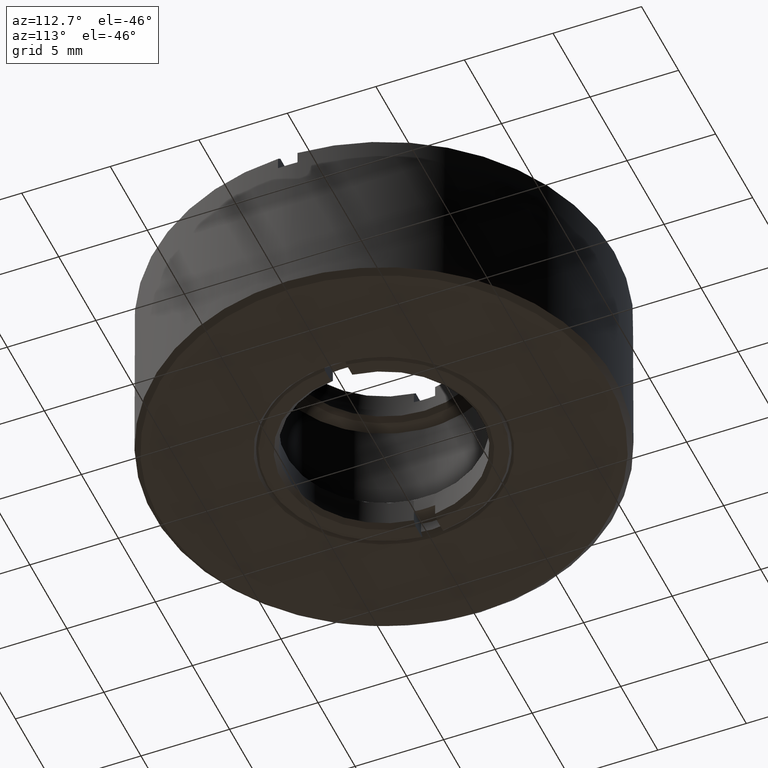
[diagram: clean part render]
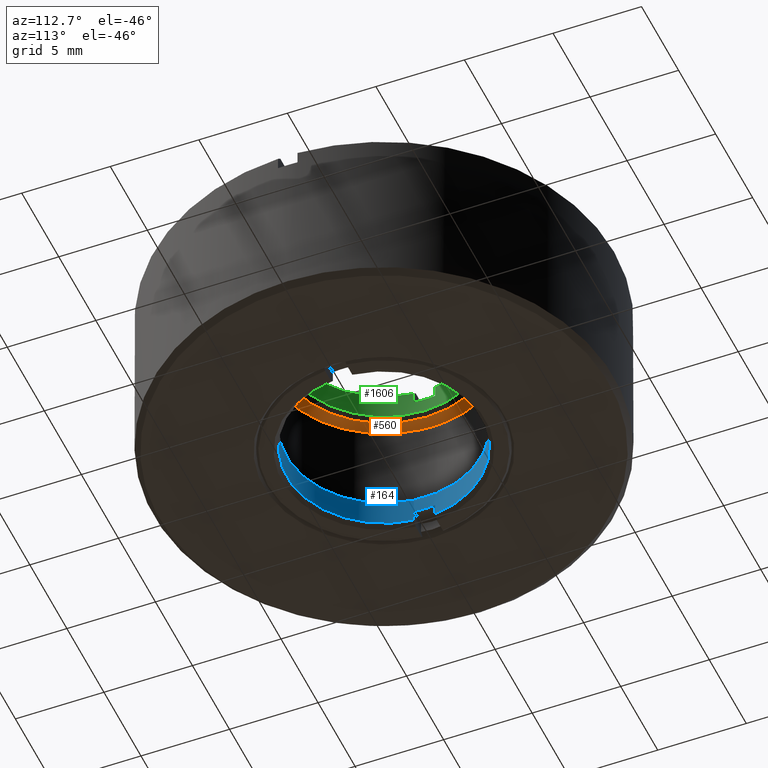
[diagram: same view with three faces highlighted in distinct colors, each labeled with its STEP entity id]
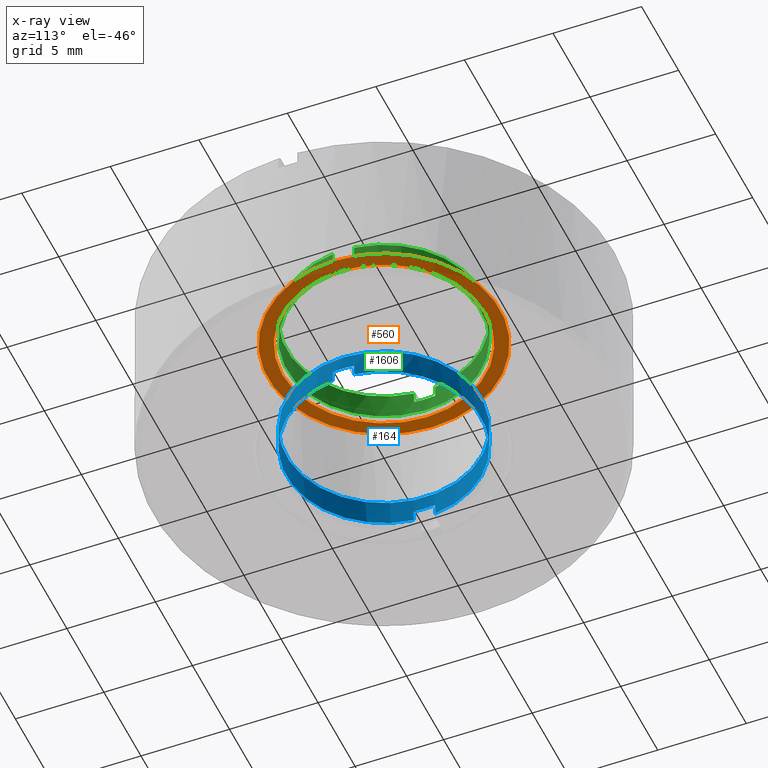
[diagram: x-ray of the same camera — body ghosted, the three highlighted faces saturated]
A machine part, auxiliary view with three faces highlighted in distinct colors.
The next image is the same camera in x-ray (body ghosted, the three faces saturated) — at least one of them is partly hidden behind the body in this view.
Their STEP definitions:

[orange] entity #560 — the highlighted planar face has unit normal (0, 0, 1).
#35 = DIRECTION ( 'NONE',  ( 1.000000000000000000, 0.000000000000000000, 0.000000000000000000 ) ) ;
#67 = CIRCLE ( 'NONE', #702, 5.749999999977717380 ) ;
#131 = CARTESIAN_POINT ( 'NONE',  ( 0.000000000000000000, 0.000000000000000000, 2.999999999990450306 ) ) ;
#204 = CARTESIAN_POINT ( 'NONE',  ( 6.545000000016898412, 0.000000000000000000, 3.000000000047293724 ) ) ;
#207 = ORIENTED_EDGE ( 'NONE', *, *, #1243, .F. ) ;
#315 = EDGE_CURVE ( 'NONE', #729, #729, #1078, .T. ) ;
#326 = FACE_BOUND ( 'NONE', #1264, .T. ) ;
#391 = DIRECTION ( 'NONE',  ( 0.000000000000000000, 0.000000000000000000, -1.000000000000000000 ) ) ;
#441 = ORIENTED_EDGE ( 'NONE', *, *, #315, .F. ) ;
#455 = DIRECTION ( 'NONE',  ( 0.000000000000000000, 0.000000000000000000, 1.000000000000000000 ) ) ;
#560 = ADVANCED_FACE ( 'NONE', ( #1417, #326 ), #1432, .F. ) ;
#630 = DIRECTION ( 'NONE',  ( -1.000000000000000000, 0.000000000000000000, 0.000000000000000000 ) ) ;
#668 = DIRECTION ( 'NONE',  ( 1.000000000000000000, 0.000000000000000000, -0.000000000000000000 ) ) ;
#702 = AXIS2_PLACEMENT_3D ( 'NONE', #131, #391, #630 ) ;
#729 = VERTEX_POINT ( 'NONE', #204 ) ;
#830 = EDGE_LOOP ( 'NONE', ( #441 ) ) ;
#838 = AXIS2_PLACEMENT_3D ( 'NONE', #1303, #455, #668 ) ;
#896 = DIRECTION ( 'NONE',  ( 0.000000000000000000, 0.000000000000000000, 1.000000000000000000 ) ) ;
#1078 = CIRCLE ( 'NONE', #1364, 6.545000000016898412 ) ;
#1243 = EDGE_CURVE ( 'NONE', #1557, #1557, #67, .T. ) ;
#1264 = EDGE_LOOP ( 'NONE', ( #207 ) ) ;
#1303 = CARTESIAN_POINT ( 'NONE',  ( 0.000000000000000000, 0.000000000000000000, 3.000000000000000000 ) ) ;
#1339 = CARTESIAN_POINT ( 'NONE',  ( 0.000000000000000000, 0.000000000000000000, 3.000000000047293724 ) ) ;
#1364 = AXIS2_PLACEMENT_3D ( 'NONE', #1339, #896, #35 ) ;
#1417 = FACE_OUTER_BOUND ( 'NONE', #830, .T. ) ;
#1432 = PLANE ( 'NONE',  #838 ) ;
#1557 = VERTEX_POINT ( 'NONE', #1580 ) ;
#1580 = CARTESIAN_POINT ( 'NONE',  ( -5.749999999977717380, 0.000000000000000000, 2.999999999990450306 ) ) ;

[blue] entity #164 — the highlighted cylindrical surface (bore or boss wall) has radius 5.5 mm, axis along (0, 0, -1).
#41 = CIRCLE ( 'NONE', #209, 5.499999999999998224 ) ;
#87 = CARTESIAN_POINT ( 'NONE',  ( -5.467174773134655830, 0.6000000000000000888, -3.000000000000000000 ) ) ;
#102 = EDGE_LOOP ( 'NONE', ( #394, #988, #301, #250, #1431, #848, #241, #432 ) ) ;
#122 = VERTEX_POINT ( 'NONE', #1162 ) ;
#157 = CIRCLE ( 'NONE', #774, 5.499999999999998224 ) ;
#164 = ADVANCED_FACE ( 'NONE', ( #435, #1387 ), #1394, .F. ) ;
#197 = DIRECTION ( 'NONE',  ( -0.000000000000000000, -0.000000000000000000, 1.000000000000000000 ) ) ;
#209 = AXIS2_PLACEMENT_3D ( 'NONE', #292, #1587, #889 ) ;
#212 = CARTESIAN_POINT ( 'NONE',  ( -5.467174773156500578, -0.5999999999999998668, -4.750000000043995030 ) ) ;
#232 = VERTEX_POINT ( 'NONE', #466 ) ;
#233 = VERTEX_POINT ( 'NONE', #212 ) ;
#240 = EDGE_CURVE ( 'NONE', #888, #233, #1136, .T. ) ;
#241 = ORIENTED_EDGE ( 'NONE', *, *, #240, .T. ) ;
#247 = ORIENTED_EDGE ( 'NONE', *, *, #1192, .T. ) ;
#248 = LINE ( 'NONE', #837, #1426 ) ;
#250 = ORIENTED_EDGE ( 'NONE', *, *, #572, .F. ) ;
#278 = CARTESIAN_POINT ( 'NONE',  ( 5.467174773129458210, 0.6000000000000000888, -4.750000000005970335 ) ) ;
#288 = DIRECTION ( 'NONE',  ( -1.000000000000000000, 7.105427357601001859E-15, 0.000000000000000000 ) ) ;
#292 = CARTESIAN_POINT ( 'NONE',  ( 0.000000000000000000, 0.000000000000000000, -4.099999999999999645 ) ) ;
#301 = ORIENTED_EDGE ( 'NONE', *, *, #1186, .F. ) ;
#316 = LINE ( 'NONE', #694, #532 ) ;
#349 = EDGE_CURVE ( 'NONE', #1577, #999, #41, .T. ) ;
#368 = EDGE_LOOP ( 'NONE', ( #247 ) ) ;
#376 = VERTEX_POINT ( 'NONE', #278 ) ;
#394 = ORIENTED_EDGE ( 'NONE', *, *, #349, .F. ) ;
#411 = AXIS2_PLACEMENT_3D ( 'NONE', #1268, #539, #1025 ) ;
#432 = ORIENTED_EDGE ( 'NONE', *, *, #1285, .T. ) ;
#435 = FACE_OUTER_BOUND ( 'NONE', #102, .T. ) ;
#460 = DIRECTION ( 'NONE',  ( -1.000000000000000000, 0.000000000000000000, 0.000000000000000000 ) ) ;
#466 = CARTESIAN_POINT ( 'NONE',  ( 5.467174773136141752, -0.5999999999999998668, -4.099999999999999645 ) ) ;
#473 = AXIS2_PLACEMENT_3D ( 'NONE', #845, #943, #1341 ) ;
#480 = VECTOR ( 'NONE', #1570, 1000.000000000000000 ) ;
#532 = VECTOR ( 'NONE', #803, 1000.000000000000000 ) ;
#539 = DIRECTION ( 'NONE',  ( 0.000000000000000000, 0.000000000000000000, -1.000000000000000000 ) ) ;
#572 = EDGE_CURVE ( 'NONE', #623, #376, #316, .T. ) ;
#594 = DIRECTION ( 'NONE',  ( 0.000000000000000000, -0.000000000000000000, -1.000000000000000000 ) ) ;
#621 = EDGE_CURVE ( 'NONE', #232, #888, #248, .T. ) ;
#623 = VERTEX_POINT ( 'NONE', #847 ) ;
#694 = CARTESIAN_POINT ( 'NONE',  ( 5.467174773134655830, 0.6000000000000000888, -3.000000000000000000 ) ) ;
#774 = AXIS2_PLACEMENT_3D ( 'NONE', #1193, #1447, #951 ) ;
#803 = DIRECTION ( 'NONE',  ( 0.000000000000000000, 0.000000000000000000, -1.000000000000000000 ) ) ;
#837 = CARTESIAN_POINT ( 'NONE',  ( 5.467174773137628563, -0.5999999999999998668, -4.100000000000000533 ) ) ;
#842 = CARTESIAN_POINT ( 'NONE',  ( -5.467174773134655830, 0.6000000000000000888, -4.099999999999999645 ) ) ;
#845 = CARTESIAN_POINT ( 'NONE',  ( 0.000000000000000000, 0.000000000000000000, -3.249999999927695171 ) ) ;
#847 = CARTESIAN_POINT ( 'NONE',  ( 5.467174773134655830, 0.6000000000000000888, -4.099999999999999645 ) ) ;
#848 = ORIENTED_EDGE ( 'NONE', *, *, #621, .T. ) ;
#888 = VERTEX_POINT ( 'NONE', #1611 ) ;
#889 = DIRECTION ( 'NONE',  ( -1.000000000000000000, 0.000000000000000000, 0.000000000000000000 ) ) ;
#943 = DIRECTION ( 'NONE',  ( 0.000000000000000000, -0.000000000000000000, 1.000000000000000000 ) ) ;
#951 = DIRECTION ( 'NONE',  ( -1.000000000000000000, -8.881784197001252323E-16, 0.000000000000000000 ) ) ;
#988 = ORIENTED_EDGE ( 'NONE', *, *, #1535, .F. ) ;
#994 = DIRECTION ( 'NONE',  ( -0.000000000000000000, 0.000000000000000000, 1.000000000000000000 ) ) ;
#999 = VERTEX_POINT ( 'NONE', #1300 ) ;
#1025 = DIRECTION ( 'NONE',  ( -1.000000000000000000, 0.000000000000000000, 0.000000000000000000 ) ) ;
#1055 = CIRCLE ( 'NONE', #473, 5.500000000040472514 ) ;
#1062 = VERTEX_POINT ( 'NONE', #1086 ) ;
#1077 = LINE ( 'NONE', #87, #480 ) ;
#1085 = CARTESIAN_POINT ( 'NONE',  ( 0.000000000000000000, 0.000000000000000000, -4.750000000062755134 ) ) ;
#1086 = CARTESIAN_POINT ( 'NONE',  ( 5.500000000040472514, 0.000000000000000000, -3.249999999927695171 ) ) ;
#1107 = CARTESIAN_POINT ( 'NONE',  ( -5.467174773137628563, -0.5999999999999998668, -4.100000000000000533 ) ) ;
#1136 = CIRCLE ( 'NONE', #1597, 5.500000000040472514 ) ;
#1144 = AXIS2_PLACEMENT_3D ( 'NONE', #1298, #197, #288 ) ;
#1162 = CARTESIAN_POINT ( 'NONE',  ( -5.467174773129178433, 0.6000000000000000888, -4.750000000005691447 ) ) ;
#1186 = EDGE_CURVE ( 'NONE', #376, #122, #157, .T. ) ;
#1192 = EDGE_CURVE ( 'NONE', #1062, #1062, #1055, .T. ) ;
#1193 = CARTESIAN_POINT ( 'NONE',  ( 0.000000000000000000, 0.000000000000000000, -4.749999999999992895 ) ) ;
#1197 = DIRECTION ( 'NONE',  ( 0.000000000000000000, 0.000000000000000000, -1.000000000000000000 ) ) ;
#1268 = CARTESIAN_POINT ( 'NONE',  ( 0.000000000000000000, 0.000000000000000000, -3.000000000000000000 ) ) ;
#1285 = EDGE_CURVE ( 'NONE', #233, #999, #1347, .T. ) ;
#1298 = CARTESIAN_POINT ( 'NONE',  ( 0.000000000000000000, 0.000000000000000000, -4.099999999999999645 ) ) ;
#1300 = CARTESIAN_POINT ( 'NONE',  ( -5.467174773136141752, -0.5999999999999998668, -4.099999999999999645 ) ) ;
#1341 = DIRECTION ( 'NONE',  ( 1.000000000000000000, 0.000000000000000000, 0.000000000000000000 ) ) ;
#1347 = LINE ( 'NONE', #1107, #1554 ) ;
#1387 = FACE_OUTER_BOUND ( 'NONE', #368, .T. ) ;
#1394 = CYLINDRICAL_SURFACE ( 'NONE', #411, 5.499999999999998224 ) ;
#1426 = VECTOR ( 'NONE', #594, 1000.000000000000000 ) ;
#1431 = ORIENTED_EDGE ( 'NONE', *, *, #1474, .F. ) ;
#1447 = DIRECTION ( 'NONE',  ( -0.000000000000000000, -0.000000000000000000, 1.000000000000000000 ) ) ;
#1474 = EDGE_CURVE ( 'NONE', #232, #623, #1578, .T. ) ;
#1535 = EDGE_CURVE ( 'NONE', #122, #1577, #1077, .T. ) ;
#1554 = VECTOR ( 'NONE', #994, 1000.000000000000000 ) ;
#1570 = DIRECTION ( 'NONE',  ( -0.000000000000000000, -0.000000000000000000, 1.000000000000000000 ) ) ;
#1577 = VERTEX_POINT ( 'NONE', #842 ) ;
#1578 = CIRCLE ( 'NONE', #1144, 5.499999999999998224 ) ;
#1587 = DIRECTION ( 'NONE',  ( -0.000000000000000000, -0.000000000000000000, 1.000000000000000000 ) ) ;
#1597 = AXIS2_PLACEMENT_3D ( 'NONE', #1085, #1197, #460 ) ;
#1611 = CARTESIAN_POINT ( 'NONE',  ( 5.467174773151968203, -0.5999999999999998668, -4.750000000039488413 ) ) ;

[green] entity #1606 — the highlighted cylindrical surface (bore or boss wall) has radius 5.5 mm, axis along (0, 0, 1).
#2 = VERTEX_POINT ( 'NONE', #538 ) ;
#29 = DIRECTION ( 'NONE',  ( -0.000000000000000000, -0.000000000000000000, -1.000000000000000000 ) ) ;
#57 = DIRECTION ( 'NONE',  ( -0.000000000000000000, -0.000000000000000000, -1.000000000000000000 ) ) ;
#64 = DIRECTION ( 'NONE',  ( -0.000000000000000000, 0.000000000000000000, 1.000000000000000000 ) ) ;
#75 = AXIS2_PLACEMENT_3D ( 'NONE', #1042, #29, #540 ) ;
#103 = DIRECTION ( 'NONE',  ( 0.000000000000000000, -0.000000000000000000, -1.000000000000000000 ) ) ;
#108 = DIRECTION ( 'NONE',  ( 1.000000000000000000, 0.000000000000000000, 0.000000000000000000 ) ) ;
#130 = VECTOR ( 'NONE', #57, 1000.000000000000000 ) ;
#138 = CARTESIAN_POINT ( 'NONE',  ( 0.000000000000000000, 0.000000000000000000, 4.750000000062755134 ) ) ;
#140 = CARTESIAN_POINT ( 'NONE',  ( -5.467174773151968203, -0.5999999999999998668, 4.750000000039488413 ) ) ;
#150 = CARTESIAN_POINT ( 'NONE',  ( -5.467174773137628563, -0.5999999999999998668, 4.100000000000000533 ) ) ;
#160 = CARTESIAN_POINT ( 'NONE',  ( 5.467174773156500578, -0.5999999999999998668, 4.750000000043995030 ) ) ;
#235 = CYLINDRICAL_SURFACE ( 'NONE', #490, 5.499999999999998224 ) ;
#260 = VECTOR ( 'NONE', #1180, 1000.000000000000000 ) ;
#264 = CARTESIAN_POINT ( 'NONE',  ( 0.000000000000000000, 0.000000000000000000, 3.249999999927695171 ) ) ;
#302 = CARTESIAN_POINT ( 'NONE',  ( 0.000000000000000000, 0.000000000000000000, 4.749999999999992895 ) ) ;
#305 = LINE ( 'NONE', #1171, #130 ) ;
#352 = ORIENTED_EDGE ( 'NONE', *, *, #916, .T. ) ;
#356 = VERTEX_POINT ( 'NONE', #1331 ) ;
#383 = CARTESIAN_POINT ( 'NONE',  ( -5.467174773129458210, 0.6000000000000000888, 4.750000000005970335 ) ) ;
#387 = ORIENTED_EDGE ( 'NONE', *, *, #1270, .T. ) ;
#388 = EDGE_LOOP ( 'NONE', ( #1238 ) ) ;
#396 = ORIENTED_EDGE ( 'NONE', *, *, #1168, .F. ) ;
#433 = AXIS2_PLACEMENT_3D ( 'NONE', #302, #1054, #1539 ) ;
#448 = VERTEX_POINT ( 'NONE', #160 ) ;
#454 = CIRCLE ( 'NONE', #75, 5.499999999999998224 ) ;
#456 = CIRCLE ( 'NONE', #1555, 5.500000000040472514 ) ;
#476 = DIRECTION ( 'NONE',  ( -0.000000000000000000, -0.000000000000000000, -1.000000000000000000 ) ) ;
#490 = AXIS2_PLACEMENT_3D ( 'NONE', #1437, #610, #108 ) ;
#538 = CARTESIAN_POINT ( 'NONE',  ( 5.467174773134655830, 0.6000000000000000888, 4.099999999999999645 ) ) ;
#540 = DIRECTION ( 'NONE',  ( 1.000000000000000000, 0.000000000000000000, 0.000000000000000000 ) ) ;
#553 = EDGE_CURVE ( 'NONE', #875, #1377, #1295, .T. ) ;
#555 = EDGE_CURVE ( 'NONE', #1377, #1234, #1145, .T. ) ;
#583 = VECTOR ( 'NONE', #103, 1000.000000000000000 ) ;
#610 = DIRECTION ( 'NONE',  ( 0.000000000000000000, 0.000000000000000000, 1.000000000000000000 ) ) ;
#619 = DIRECTION ( 'NONE',  ( 0.000000000000000000, 0.000000000000000000, 1.000000000000000000 ) ) ;
#678 = ORIENTED_EDGE ( 'NONE', *, *, #719, .T. ) ;
#688 = CARTESIAN_POINT ( 'NONE',  ( -5.467174773134655830, 0.6000000000000000888, 3.000000000000000000 ) ) ;
#712 = FACE_OUTER_BOUND ( 'NONE', #388, .T. ) ;
#719 = EDGE_CURVE ( 'NONE', #448, #993, #1211, .T. ) ;
#740 = ORIENTED_EDGE ( 'NONE', *, *, #1034, .F. ) ;
#752 = ORIENTED_EDGE ( 'NONE', *, *, #555, .F. ) ;
#759 = CARTESIAN_POINT ( 'NONE',  ( 5.467174773129178433, 0.6000000000000000888, 4.750000000005691447 ) ) ;
#766 = LINE ( 'NONE', #150, #1315 ) ;
#846 = VERTEX_POINT ( 'NONE', #140 ) ;
#854 = AXIS2_PLACEMENT_3D ( 'NONE', #1572, #476, #1438 ) ;
#865 = EDGE_CURVE ( 'NONE', #356, #356, #456, .T. ) ;
#875 = VERTEX_POINT ( 'NONE', #1359 ) ;
#891 = DIRECTION ( 'NONE',  ( 1.000000000000000000, 0.000000000000000000, 0.000000000000000000 ) ) ;
#916 = EDGE_CURVE ( 'NONE', #973, #846, #766, .T. ) ;
#973 = VERTEX_POINT ( 'NONE', #1157 ) ;
#991 = CIRCLE ( 'NONE', #1348, 5.500000000040472514 ) ;
#993 = VERTEX_POINT ( 'NONE', #1278 ) ;
#1034 = EDGE_CURVE ( 'NONE', #1234, #2, #305, .T. ) ;
#1042 = CARTESIAN_POINT ( 'NONE',  ( 0.000000000000000000, 0.000000000000000000, 4.099999999999999645 ) ) ;
#1054 = DIRECTION ( 'NONE',  ( -0.000000000000000000, -0.000000000000000000, -1.000000000000000000 ) ) ;
#1118 = DIRECTION ( 'NONE',  ( -1.000000000000000000, 0.000000000000000000, 0.000000000000000000 ) ) ;
#1145 = CIRCLE ( 'NONE', #433, 5.499999999999998224 ) ;
#1157 = CARTESIAN_POINT ( 'NONE',  ( -5.467174773136141752, -0.5999999999999998668, 4.099999999999999645 ) ) ;
#1161 = CIRCLE ( 'NONE', #854, 5.499999999999998224 ) ;
#1168 = EDGE_CURVE ( 'NONE', #973, #875, #1161, .T. ) ;
#1171 = CARTESIAN_POINT ( 'NONE',  ( 5.467174773134655830, 0.6000000000000000888, 3.000000000000000000 ) ) ;
#1180 = DIRECTION ( 'NONE',  ( 0.000000000000000000, 0.000000000000000000, 1.000000000000000000 ) ) ;
#1189 = ORIENTED_EDGE ( 'NONE', *, *, #1483, .F. ) ;
#1210 = ORIENTED_EDGE ( 'NONE', *, *, #553, .F. ) ;
#1211 = LINE ( 'NONE', #1328, #583 ) ;
#1234 = VERTEX_POINT ( 'NONE', #759 ) ;
#1238 = ORIENTED_EDGE ( 'NONE', *, *, #865, .T. ) ;
#1270 = EDGE_CURVE ( 'NONE', #846, #448, #991, .T. ) ;
#1278 = CARTESIAN_POINT ( 'NONE',  ( 5.467174773136141752, -0.5999999999999998668, 4.099999999999999645 ) ) ;
#1295 = LINE ( 'NONE', #688, #260 ) ;
#1315 = VECTOR ( 'NONE', #64, 1000.000000000000000 ) ;
#1328 = CARTESIAN_POINT ( 'NONE',  ( 5.467174773137628563, -0.5999999999999998668, 4.100000000000000533 ) ) ;
#1331 = CARTESIAN_POINT ( 'NONE',  ( -5.500000000040472514, 0.000000000000000000, 3.249999999927695171 ) ) ;
#1348 = AXIS2_PLACEMENT_3D ( 'NONE', #138, #619, #891 ) ;
#1359 = CARTESIAN_POINT ( 'NONE',  ( -5.467174773134655830, 0.6000000000000000888, 4.099999999999999645 ) ) ;
#1377 = VERTEX_POINT ( 'NONE', #383 ) ;
#1381 = DIRECTION ( 'NONE',  ( -0.000000000000000000, -0.000000000000000000, -1.000000000000000000 ) ) ;
#1408 = EDGE_LOOP ( 'NONE', ( #1189, #740, #752, #1210, #396, #352, #387, #678 ) ) ;
#1428 = FACE_OUTER_BOUND ( 'NONE', #1408, .T. ) ;
#1437 = CARTESIAN_POINT ( 'NONE',  ( 0.000000000000000000, 0.000000000000000000, 3.000000000000000000 ) ) ;
#1438 = DIRECTION ( 'NONE',  ( 1.000000000000000000, 7.105427357601001859E-15, 0.000000000000000000 ) ) ;
#1483 = EDGE_CURVE ( 'NONE', #2, #993, #454, .T. ) ;
#1539 = DIRECTION ( 'NONE',  ( 1.000000000000000000, -8.881784197001252323E-16, 0.000000000000000000 ) ) ;
#1555 = AXIS2_PLACEMENT_3D ( 'NONE', #264, #1381, #1118 ) ;
#1572 = CARTESIAN_POINT ( 'NONE',  ( 0.000000000000000000, 0.000000000000000000, 4.099999999999999645 ) ) ;
#1606 = ADVANCED_FACE ( 'NONE', ( #1428, #712 ), #235, .F. ) ;